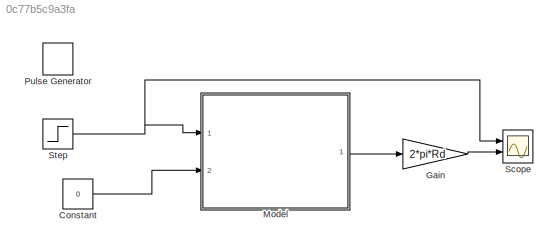
MODEL slx_0c77b5c9a3fa
KIND model
CONFIG InitFcn = v0 = 10;\nRd = 0.0625;\n\n
BLOCK [Constant] Constant
  Value = 0
BLOCK [Gain] Gain
  Gain = 2*pi*Rd
  OutDataTypeStr = Inherit: Inherit via internal rule
  ParamDataTypeStr = Inherit: Inherit via internal rule
  SaturateOnIntegerOverflow = off
BLOCK [ModelReference] Model
  CopyOfModelName = brakeModel.slx
  DefaultDataLogging = on
  ModelNameDialog = brakeModel.slx
  ModelReferenceVersion = 1.12
  Ports = [2, 1]
BLOCK [DiscretePulseGenerator] Pulse Generator
  Period = 10
  Ports = [0, 1]
  PulseType = Time based
  PulseWidth = 5
BLOCK [Scope] Scope
  DataFormat = StructureWithTime
  Floating = off
  LimitDataPoints = off
  MaxDataPoints = 100000
  NumInputPorts = 2
  Ports = [2]
  SampleTime = 0
  ShowLegends = off
  TimeRange = 100
  YMax = 100~10
  YMin = 0~0
  ZoomMode = yonly
BLOCK [Step] Step
  After = 100
  SampleTime = 0
LINE Constant:1 -> Model:2
LINE Gain:1 -> Scope:2
LINE Model:1 -> Gain:1
NET Step:1 -> Model:1, Scope:1
note: NET lines group one-source signal fan-out (src -> all destinations, sorted); 1:1 wires keep LINE
